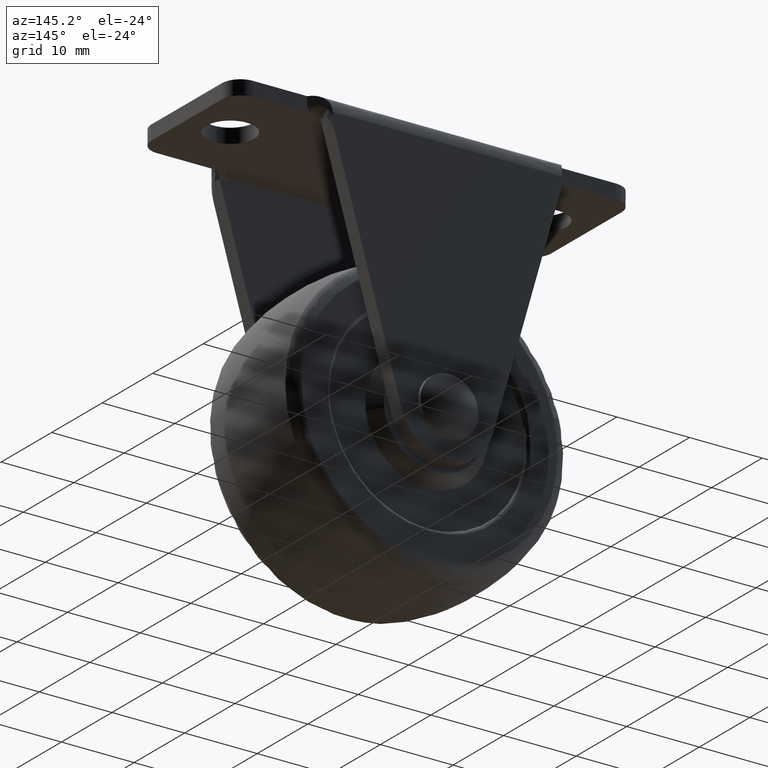
[diagram: clean part render]
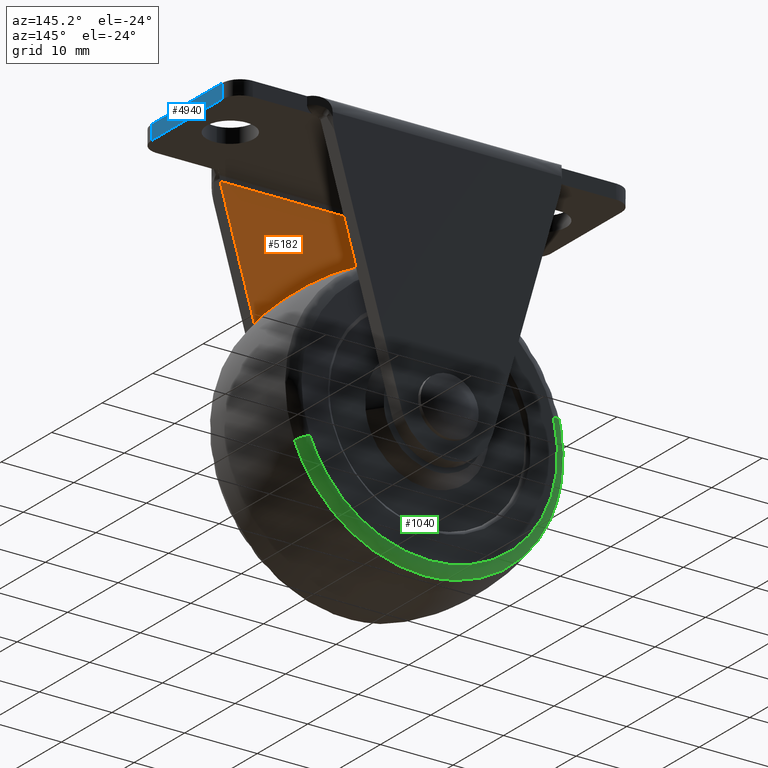
[diagram: same view with three faces highlighted in distinct colors, each labeled with its STEP entity id]
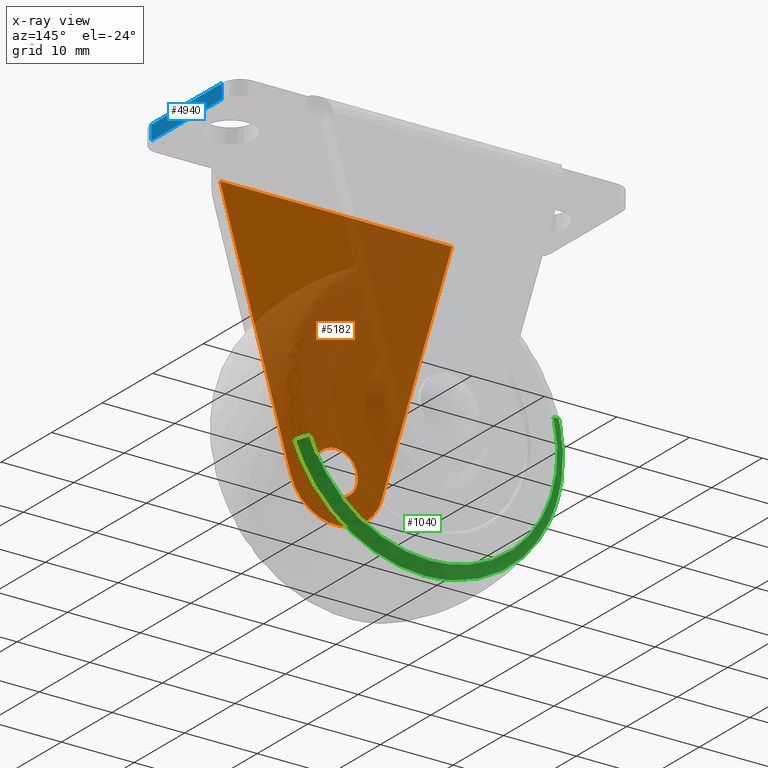
[diagram: x-ray of the same camera — body ghosted, the three highlighted faces saturated]
A machine part, auxiliary view with three faces highlighted in distinct colors.
The next image is the same camera in x-ray (body ghosted, the three faces saturated) — at least one of them is partly hidden behind the body in this view.
Their STEP definitions:

[orange] entity #5182 — the highlighted face is a freeform B-spline surface patch.
#2145=CARTESIAN_POINT('',(-2.979028579089705,-10.0,-35.354102703982861));
#2146=VERTEX_POINT('',#2145);
#2147=CARTESIAN_POINT('',(0.0,-10.0,-31.999999999999812));
#2148=VERTEX_POINT('',#2147);
#2149=CARTESIAN_POINT('',(-2.979028579089705,-10.0,-35.354102703982853));
#2150=CARTESIAN_POINT('',(-3.000000000000200,-10.0,-35.177672358968429));
#2151=CARTESIAN_POINT('',(-3.000000000000200,-10.0,-35.0));
#2152=CARTESIAN_POINT('',(-3.000000000000200,-10.000000000000002,-31.999999999999815));
#2153=CARTESIAN_POINT('',(0.0,-10.0,-31.999999999999812));
#2161=(BOUNDED_CURVE()B_SPLINE_CURVE(2,(#2149,#2150,#2151,#2152,#2153),.UNSPECIFIED.,.F.,.U.)B_SPLINE_CURVE_WITH_KNOTS((3,2,3),(0.229562473514219,0.250000000000000,0.500000000000000),.UNSPECIFIED.)CURVE()GEOMETRIC_REPRESENTATION_ITEM()RATIONAL_B_SPLINE_CURVE((0.956026754185093,0.976055948331978,1.0,0.707106781186548,1.0))REPRESENTATION_ITEM(''));
#2162=EDGE_CURVE('',#2146,#2148,#2161,.T.);
#2164=CARTESIAN_POINT('',(2.994404395259357,-10.0,-34.816854381290071));
#2165=VERTEX_POINT('',#2164);
#2166=CARTESIAN_POINT('',(0.0,-10.0,-31.999999999999812));
#2167=CARTESIAN_POINT('',(2.822118200518337,-10.0,-31.999999999999801));
#2168=CARTESIAN_POINT('',(2.994404395259356,-10.0,-34.816854381290071));
#2176=(BOUNDED_CURVE()B_SPLINE_CURVE(2,(#2166,#2167,#2168),.UNSPECIFIED.,.F.,.U.)B_SPLINE_CURVE_WITH_KNOTS((3,3),(0.500000000000000,0.739332962229828),.UNSPECIFIED.)CURVE()GEOMETRIC_REPRESENTATION_ITEM()RATIONAL_B_SPLINE_CURVE((1.0,0.719603993297389,0.976072041647183))REPRESENTATION_ITEM(''));
#2177=EDGE_CURVE('',#2148,#2165,#2176,.T.);
#2244=CARTESIAN_POINT('',(0.0,-10.0,-38.000000000000199));
#2245=VERTEX_POINT('',#2244);
#2246=CARTESIAN_POINT('',(0.0,-10.0,-38.000000000000199));
#2247=CARTESIAN_POINT('',(-2.664523577831657,-10.0,-38.000000000000206));
#2248=CARTESIAN_POINT('',(-2.979028579089704,-10.0,-35.354102703982853));
#2256=(BOUNDED_CURVE()B_SPLINE_CURVE(2,(#2246,#2247,#2248),.UNSPECIFIED.,.F.,.U.)B_SPLINE_CURVE_WITH_KNOTS((3,3),(0.0,0.229562473514219),.UNSPECIFIED.)CURVE()GEOMETRIC_REPRESENTATION_ITEM()RATIONAL_B_SPLINE_CURVE((1.0,0.731050832854570,0.956026754185093))REPRESENTATION_ITEM(''));
#2257=EDGE_CURVE('',#2245,#2146,#2256,.T.);
#2291=CARTESIAN_POINT('',(2.994404395259357,-10.0,-34.816854381290071));
#2292=CARTESIAN_POINT('',(3.000000000000199,-9.999999999999998,-34.908341709998581));
#2293=CARTESIAN_POINT('',(3.000000000000200,-10.0,-35.0));
#2294=CARTESIAN_POINT('',(3.000000000000200,-10.000000000000002,-38.000000000000199));
#2295=CARTESIAN_POINT('',(0.0,-10.0,-38.000000000000199));
#2303=(BOUNDED_CURVE()B_SPLINE_CURVE(2,(#2291,#2292,#2293,#2294,#2295),.UNSPECIFIED.,.F.,.U.)B_SPLINE_CURVE_WITH_KNOTS((3,2,3),(0.739332962229827,0.750000000000000,1.0),.UNSPECIFIED.)CURVE()GEOMETRIC_REPRESENTATION_ITEM()RATIONAL_B_SPLINE_CURVE((0.976072041647182,0.987502787889158,1.0,0.707106781186548,1.0))REPRESENTATION_ITEM(''));
#2304=EDGE_CURVE('',#2165,#2245,#2303,.T.);
#4162=CARTESIAN_POINT('',(15.962522661620900,-10.0,-2.999999999999890));
#4163=VERTEX_POINT('',#4162);
#4177=CARTESIAN_POINT('',(-15.962522705542749,-10.0,-2.999999999999560));
#4178=VERTEX_POINT('',#4177);
#4179=CARTESIAN_POINT('',(-15.962522705542749,-10.0,-2.999999999999560));
#4180=CARTESIAN_POINT('',(15.962522661620900,-10.0,-2.999999999999890));
#4181=QUASI_UNIFORM_CURVE('',1,(#4179,#4180),.UNSPECIFIED.,.F.,.U.);
#4182=EDGE_CURVE('',#4178,#4163,#4181,.T.);
#4399=CARTESIAN_POINT('',(6.246988000000100,-10.0,-36.795865999999812));
#4400=VERTEX_POINT('',#4399);
#4406=CARTESIAN_POINT('',(6.246988000000100,-10.0,-36.795865999999812));
#4407=CARTESIAN_POINT('',(15.962522661620900,-10.0,-2.999999999999890));
#4408=QUASI_UNIFORM_CURVE('',1,(#4406,#4407),.UNSPECIFIED.,.F.,.U.);
#4409=EDGE_CURVE('',#4400,#4163,#4408,.T.);
#4430=CARTESIAN_POINT('',(-6.246989151439200,-10.0,-36.795865473212253));
#4431=VERTEX_POINT('',#4430);
#4432=CARTESIAN_POINT('',(-15.962522705542749,-10.0,-2.999999999999560));
#4433=CARTESIAN_POINT('',(-6.246989151439200,-10.0,-36.795865473212253));
#4434=QUASI_UNIFORM_CURVE('',1,(#4432,#4433),.UNSPECIFIED.,.F.,.U.);
#4435=EDGE_CURVE('',#4178,#4431,#4434,.T.);
#4480=CARTESIAN_POINT('',(6.246988000000085,-10.0,-36.795865999999798));
#4481=CARTESIAN_POINT('',(4.894657245220042,-10.0,-41.500000208905085));
#4482=CARTESIAN_POINT('',(-0.000000774061473,-10.0,-41.500000002530051));
#4483=CARTESIAN_POINT('',(-4.894658793342984,-10.0,-41.499999796155009));
#4484=CARTESIAN_POINT('',(-6.246989151439196,-10.0,-36.795865473212253));
#4492=(BOUNDED_CURVE()B_SPLINE_CURVE(2,(#4480,#4481,#4482,#4483,#4484),.UNSPECIFIED.,.F.,.U.)B_SPLINE_CURVE_WITH_KNOTS((3,2,3),(0.0,0.500000000000000,1.0),.UNSPECIFIED.)CURVE()GEOMETRIC_REPRESENTATION_ITEM()RATIONAL_B_SPLINE_CURVE((1.0,0.798838856094171,1.0,0.798838856094171,1.0))REPRESENTATION_ITEM(''));
#4493=EDGE_CURVE('',#4400,#4431,#4492,.T.);
#5165=CARTESIAN_POINT('',(-17.557178659755639,-10.0,-1.076925074493635));
#5166=CARTESIAN_POINT('',(-17.557178659755639,-10.0,-43.423075960686411));
#5167=CARTESIAN_POINT('',(17.557179472130240,-10.0,-1.076925074493635));
#5168=CARTESIAN_POINT('',(17.557179472130240,-10.0,-43.423075960686411));
#5169=B_SPLINE_SURFACE_WITH_KNOTS('',1,1,((#5165,#5167),(#5166,#5168)),.UNSPECIFIED.,.F.,.F.,.U.,(2,2),(2,2),(0.0,42.346150886192767),(0.0,35.114358131885879),.UNSPECIFIED.);
#5170=ORIENTED_EDGE('',*,*,#4435,.F.);
#5171=ORIENTED_EDGE('',*,*,#4182,.T.);
#5172=ORIENTED_EDGE('',*,*,#4409,.F.);
#5173=ORIENTED_EDGE('',*,*,#4493,.T.);
#5174=EDGE_LOOP('',(#5170,#5171,#5172,#5173));
#5175=FACE_OUTER_BOUND('',#5174,.T.);
#5176=ORIENTED_EDGE('',*,*,#2177,.F.);
#5177=ORIENTED_EDGE('',*,*,#2162,.F.);
#5178=ORIENTED_EDGE('',*,*,#2257,.F.);
#5179=ORIENTED_EDGE('',*,*,#2304,.F.);
#5180=EDGE_LOOP('',(#5176,#5177,#5178,#5179));
#5181=FACE_BOUND('',#5180,.T.);
#5182=ADVANCED_FACE('',(#5175,#5181),#5169,.F.);

[blue] entity #4940 — the highlighted face is a freeform B-spline surface patch.
#4635=CARTESIAN_POINT('',(27.500000000000000,7.0,-1.999999999999780));
#4636=VERTEX_POINT('',#4635);
#4650=CARTESIAN_POINT('',(27.500000000000000,-7.0,-1.999999999999780));
#4651=VERTEX_POINT('',#4650);
#4652=CARTESIAN_POINT('',(27.500000000000000,-7.0,-1.999999999999780));
#4653=CARTESIAN_POINT('',(27.500000000000000,7.0,-1.999999999999780));
#4654=QUASI_UNIFORM_CURVE('',1,(#4652,#4653),.UNSPECIFIED.,.F.,.U.);
#4655=EDGE_CURVE('',#4651,#4636,#4654,.T.);
#4771=CARTESIAN_POINT('',(27.500000000000000,-7.0,0.0));
#4772=VERTEX_POINT('',#4771);
#4786=CARTESIAN_POINT('',(27.500000000000000,7.0,0.0));
#4787=VERTEX_POINT('',#4786);
#4788=CARTESIAN_POINT('',(27.500000000000000,-7.0,0.0));
#4789=CARTESIAN_POINT('',(27.500000000000000,7.0,0.0));
#4790=QUASI_UNIFORM_CURVE('',1,(#4788,#4789),.UNSPECIFIED.,.F.,.U.);
#4791=EDGE_CURVE('',#4772,#4787,#4790,.T.);
#4914=CARTESIAN_POINT('',(27.500000000000000,7.0,-1.999999999999780));
#4915=CARTESIAN_POINT('',(27.500000000000000,7.0,0.0));
#4916=QUASI_UNIFORM_CURVE('',1,(#4914,#4915),.UNSPECIFIED.,.F.,.U.);
#4917=EDGE_CURVE('',#4636,#4787,#4916,.T.);
#4925=CARTESIAN_POINT('',(27.500000000000000,-7.699299972865284,0.099899996123601));
#4926=CARTESIAN_POINT('',(27.500000000000000,-7.699299972865284,-2.099900049767562));
#4927=CARTESIAN_POINT('',(27.500000000000000,7.699300348374545,0.099899996123601));
#4928=CARTESIAN_POINT('',(27.500000000000000,7.699300348374545,-2.099900049767562));
#4929=B_SPLINE_SURFACE_WITH_KNOTS('',1,1,((#4925,#4927),(#4926,#4928)),.UNSPECIFIED.,.F.,.F.,.U.,(2,2),(2,2),(0.0,2.199800045891163),(0.0,15.398600321239829),.UNSPECIFIED.);
#4930=CARTESIAN_POINT('',(27.500000000000000,-7.0,-1.999999999999780));
#4931=CARTESIAN_POINT('',(27.500000000000000,-7.0,0.0));
#4932=QUASI_UNIFORM_CURVE('',1,(#4930,#4931),.UNSPECIFIED.,.F.,.U.);
#4933=EDGE_CURVE('',#4651,#4772,#4932,.T.);
#4934=ORIENTED_EDGE('',*,*,#4933,.F.);
#4935=ORIENTED_EDGE('',*,*,#4655,.T.);
#4936=ORIENTED_EDGE('',*,*,#4917,.T.);
#4937=ORIENTED_EDGE('',*,*,#4791,.F.);
#4938=EDGE_LOOP('',(#4934,#4935,#4936,#4937));
#4939=FACE_OUTER_BOUND('',#4938,.T.);
#4940=ADVANCED_FACE('',(#4939),#4929,.T.);

[green] entity #1040 — the highlighted face is a freeform B-spline surface patch.
#841=CARTESIAN_POINT('',(16.452848943909569,8.500000000000000,-41.325675486274697));
#842=VERTEX_POINT('',#841);
#860=CARTESIAN_POINT('',(-17.073195590533309,8.500000000000000,-30.616348440320099));
#861=VERTEX_POINT('',#860);
#875=CARTESIAN_POINT('',(-18.481565722621060,7.368419725200161,-30.254740451162188));
#876=VERTEX_POINT('',#875);
#877=CARTESIAN_POINT('',(-17.073195590533306,8.500000000000000,-30.616348440320102));
#878=CARTESIAN_POINT('',(-18.203859767252254,8.499999999517190,-30.326043221515803));
#879=CARTESIAN_POINT('',(-18.481565722621053,7.368419725200161,-30.254740451162185));
#887=(BOUNDED_CURVE()B_SPLINE_CURVE(2,(#877,#878,#879),.UNSPECIFIED.,.F.,.U.)B_SPLINE_CURVE_WITH_KNOTS((3,3),(-1.698811277728361,-0.311793132090519),.UNSPECIFIED.)CURVE()GEOMETRIC_REPRESENTATION_ITEM()RATIONAL_B_SPLINE_CURVE((0.899313096811676,0.708577747093151,0.896418701887287))REPRESENTATION_ITEM(''));
#888=EDGE_CURVE('',#861,#876,#887,.T.);
#905=CARTESIAN_POINT('',(17.810046457895250,7.368419182704551,-41.847481227785337));
#906=VERTEX_POINT('',#905);
#922=CARTESIAN_POINT('',(16.452848943909576,8.500000000000000,-41.325675486274704));
#923=CARTESIAN_POINT('',(17.542431327260545,8.499999996891475,-41.744590447141917));
#924=CARTESIAN_POINT('',(17.810046457895247,7.368419182704551,-41.847481227785330));
#932=(BOUNDED_CURVE()B_SPLINE_CURVE(2,(#922,#923,#924),.UNSPECIFIED.,.F.,.U.)B_SPLINE_CURVE_WITH_KNOTS((3,3),(-1.698811275184342,-0.311792764641144),.UNSPECIFIED.)CURVE()GEOMETRIC_REPRESENTATION_ITEM()RATIONAL_B_SPLINE_CURVE((0.860540217576632,0.678028161830775,0.857770707157313))REPRESENTATION_ITEM(''));
#933=EDGE_CURVE('',#842,#906,#932,.T.);
#938=CARTESIAN_POINT('',(-16.985210814314218,8.497246920751929,-30.638939091238129));
#939=CARTESIAN_POINT('',(-21.346271723076097,8.497246920751929,-47.624149905552336));
#940=CARTESIAN_POINT('',(-4.361060908761879,8.497246920751929,-51.985210814314200));
#941=CARTESIAN_POINT('',(10.764128358180978,8.497246920751925,-55.868699360367479));
#942=CARTESIAN_POINT('',(16.368061052197923,8.497246920751929,-41.293076834756498));
#943=CARTESIAN_POINT('',(-18.262332782605988,8.577243727238413,-30.311029902913862));
#944=CARTESIAN_POINT('',(-22.951302879692129,8.577243727238415,-48.573362685519825));
#945=CARTESIAN_POINT('',(-4.688970097086142,8.577243727238413,-53.262332782605981));
#946=CARTESIAN_POINT('',(11.573485683564304,8.577243727238415,-57.437821739486886));
#947=CARTESIAN_POINT('',(17.598779385731113,8.577243727238411,-41.766254751809043));
#948=CARTESIAN_POINT('',(-18.500645945142438,7.279388858418604,-30.249841482673276));
#949=CARTESIAN_POINT('',(-23.250804462469151,7.279388858418603,-48.750487427815699));
#950=CARTESIAN_POINT('',(-4.750158517326723,7.279388858418604,-53.500645945142431));
#951=CARTESIAN_POINT('',(11.724513156760255,7.279388858418602,-57.730622682434280));
#952=CARTESIAN_POINT('',(17.828433549967443,7.279388858418603,-41.854550567443646));
#960=(BOUNDED_SURFACE()B_SPLINE_SURFACE(2,2,((#938,#943,#948),(#939,#944,#949),(#940,#945,#950),(#941,#946,#951),(#942,#947,#952)),.UNSPECIFIED.,.F.,.F.,.U.)B_SPLINE_SURFACE_WITH_KNOTS((3,2,3),(3,3),(0.0,31.647126527416891,60.762482932640431),(0.0,2.265334867177077),.UNSPECIFIED.)GEOMETRIC_REPRESENTATION_ITEM()RATIONAL_B_SPLINE_SURFACE(((0.919312459291593,0.688723056900600,0.916128722411009),(0.650052073994367,0.487000743893943,0.647800832056592),(0.919312459291593,0.688723056900600,0.916128722411009),(0.671592904818145,0.503138528934476,0.669267063284946),(0.879677330575841,0.659029532426020,0.876630856950839)))REPRESENTATION_ITEM('')SURFACE());
#961=CARTESIAN_POINT('',(0.0,8.500000000000000,-52.626979567082799));
#962=VERTEX_POINT('',#961);
#963=CARTESIAN_POINT('',(0.0,8.500000000000000,-52.626979567082799));
#964=CARTESIAN_POINT('',(12.107803142628383,8.500000000000002,-52.626979567082792));
#965=CARTESIAN_POINT('',(16.452848943909579,8.500000000000000,-41.325675486274704));
#973=(BOUNDED_CURVE()B_SPLINE_CURVE(2,(#963,#964,#965),.UNSPECIFIED.,.F.,.U.)B_SPLINE_CURVE_WITH_KNOTS((3,3),(0.0,0.189060941089534),.UNSPECIFIED.)CURVE()GEOMETRIC_REPRESENTATION_ITEM()RATIONAL_B_SPLINE_CURVE((1.0,0.778501329649544,0.892016635831389))REPRESENTATION_ITEM(''));
#974=EDGE_CURVE('',#962,#842,#973,.T.);
#975=ORIENTED_EDGE('',*,*,#974,.T.);
#976=ORIENTED_EDGE('',*,*,#933,.T.);
#977=CARTESIAN_POINT('',(0.0,7.368421052631560,-54.081031123245047));
#978=VERTEX_POINT('',#977);
#979=CARTESIAN_POINT('',(0.0,7.368421052631560,-54.081031123245047));
#980=CARTESIAN_POINT('',(13.106576866399982,7.368421052631561,-54.081031123245069));
#981=CARTESIAN_POINT('',(17.810046457895250,7.368419182704552,-41.847481227785337));
#989=(BOUNDED_CURVE()B_SPLINE_CURVE(2,(#979,#980,#981),.UNSPECIFIED.,.F.,.U.)B_SPLINE_CURVE_WITH_KNOTS((3,3),(0.0,0.189060937279678),.UNSPECIFIED.)CURVE()GEOMETRIC_REPRESENTATION_ITEM()RATIONAL_B_SPLINE_CURVE((1.0,0.778501334113067,0.892016631256389))REPRESENTATION_ITEM(''));
#990=EDGE_CURVE('',#978,#906,#989,.T.);
#991=ORIENTED_EDGE('',*,*,#990,.F.);
#992=CARTESIAN_POINT('',(-18.953411380771492,7.368420129127069,-32.796830762945334));
#993=VERTEX_POINT('',#992);
#994=CARTESIAN_POINT('',(-18.953411380771488,7.368420129127068,-32.796830762945334));
#995=CARTESIAN_POINT('',(-19.081031123245054,7.368421052631560,-33.894719160956541));
#996=CARTESIAN_POINT('',(-19.081031123245051,7.368421052631560,-35.0));
#997=CARTESIAN_POINT('',(-19.081031123245051,7.368421052631561,-54.081031123245062));
#998=CARTESIAN_POINT('',(0.0,7.368421052631560,-54.081031123245047));
#1006=(BOUNDED_CURVE()B_SPLINE_CURVE(2,(#994,#995,#996,#997,#998),.UNSPECIFIED.,.F.,.U.)B_SPLINE_CURVE_WITH_KNOTS((3,2,3),(0.730000065538061,0.750000000000000,1.0),.UNSPECIFIED.)CURVE()GEOMETRIC_REPRESENTATION_ITEM()RATIONAL_B_SPLINE_CURVE((0.956886247185492,0.976568619277538,1.0,0.707106781186547,1.0))REPRESENTATION_ITEM(''));
#1007=EDGE_CURVE('',#993,#978,#1006,.T.);
#1008=ORIENTED_EDGE('',*,*,#1007,.F.);
#1009=CARTESIAN_POINT('',(-18.481565722621053,7.368419725200161,-30.254740451162181));
#1010=CARTESIAN_POINT('',(-18.803801159278972,7.368419932420059,-31.509764846151366));
#1011=CARTESIAN_POINT('',(-18.953411380771488,7.368420129127068,-32.796830762945334));
#1019=(BOUNDED_CURVE()B_SPLINE_CURVE(2,(#1009,#1010,#1011),.UNSPECIFIED.,.F.,.U.)B_SPLINE_CURVE_WITH_KNOTS((3,3),(0.707556762530912,0.730000065538061),.UNSPECIFIED.)CURVE()GEOMETRIC_REPRESENTATION_ITEM()RATIONAL_B_SPLINE_CURVE((0.917433345752006,0.934799302770655,0.956886247185492))REPRESENTATION_ITEM(''));
#1020=EDGE_CURVE('',#876,#993,#1019,.T.);
#1021=ORIENTED_EDGE('',*,*,#1020,.F.);
#1022=ORIENTED_EDGE('',*,*,#888,.F.);
#1023=CARTESIAN_POINT('',(-17.073195590533309,8.500000000000000,-30.616348440320102));
#1024=CARTESIAN_POINT('',(-17.626979567082802,8.500000000000000,-32.773194627400073));
#1025=CARTESIAN_POINT('',(-17.626979567082799,8.500000000000000,-35.0));
#1026=CARTESIAN_POINT('',(-17.626979567082795,8.500000000000002,-52.626979567082792));
#1027=CARTESIAN_POINT('',(0.0,8.500000000000000,-52.626979567082799));
#1035=(BOUNDED_CURVE()B_SPLINE_CURVE(2,(#1023,#1024,#1025,#1026,#1027),.UNSPECIFIED.,.F.,.U.)B_SPLINE_CURVE_WITH_KNOTS((3,2,3),(0.707556761756674,0.750000000000000,1.0),.UNSPECIFIED.)CURVE()GEOMETRIC_REPRESENTATION_ITEM()RATIONAL_B_SPLINE_CURVE((0.917433344553843,0.950274653336184,1.0,0.707106781186548,1.0))REPRESENTATION_ITEM(''));
#1036=EDGE_CURVE('',#861,#962,#1035,.T.);
#1037=ORIENTED_EDGE('',*,*,#1036,.T.);
#1038=EDGE_LOOP('',(#975,#976,#991,#1008,#1021,#1022,#1037));
#1039=FACE_OUTER_BOUND('',#1038,.T.);
#1040=ADVANCED_FACE('',(#1039),#960,.T.);